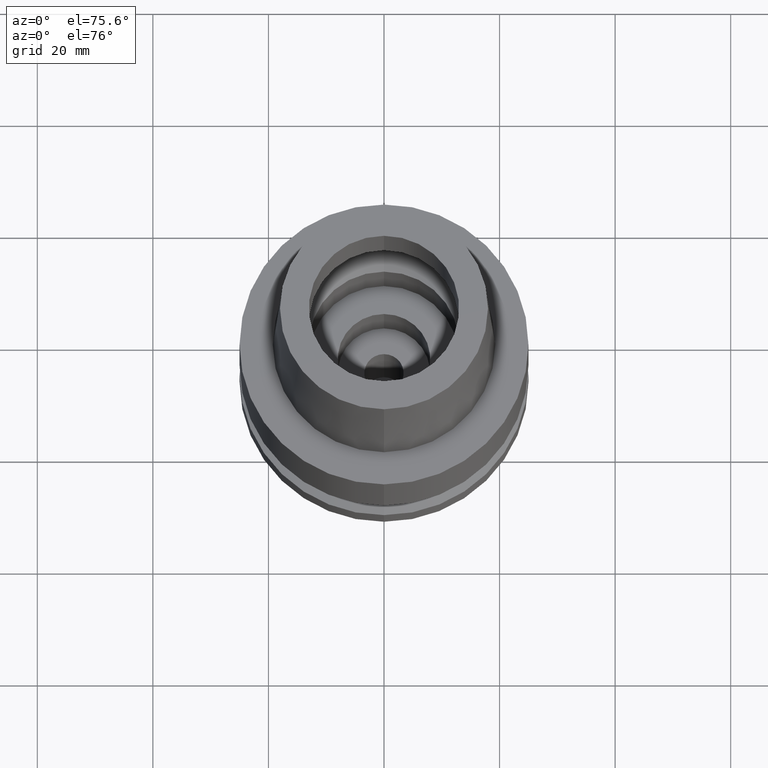
[diagram: clean part render]
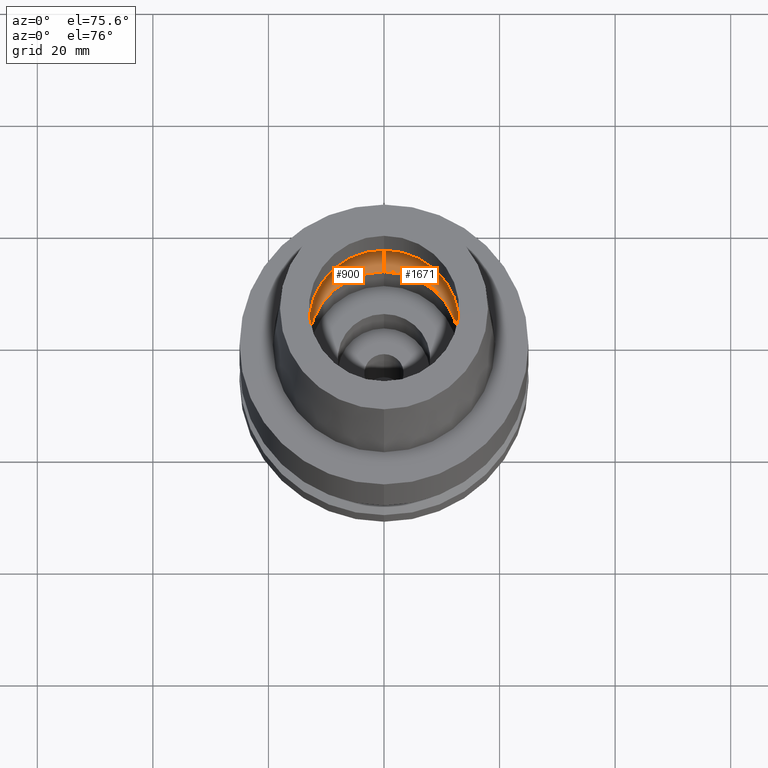
[diagram: same view with one multi-face feature highlighted, each face labeled with its STEP entity id]
A machine part, auxiliary view. The highlighted faces form ONE feature: a constant-radius fillet chain: 2 tangent blend faces with common blend radius 6 mm. The faces share edges in the B-rep.
Their STEP definitions:
[1] entity #900 (Torus):
#32 = DIRECTION ( 'NONE',  ( 0.0000000000000000000, 0.0000000000000000000, 1.000000000000000000 ) ) ;
#87 = EDGE_CURVE ( 'NONE', #241, #480, #1292, .T. ) ;
#241 = VERTEX_POINT ( 'NONE', #1084 ) ;
#284 = EDGE_CURVE ( 'NONE', #241, #2346, #1330, .T. ) ;
#323 = CARTESIAN_POINT ( 'NONE',  ( 0.0000000000000000000, 0.0000000000000000000, 5.245999999999999552 ) ) ;
#348 = CIRCLE ( 'NONE', #482, 16.00000000000000000 ) ;
#409 = DIRECTION ( 'NONE',  ( 0.0000000000000000000, 1.000000000000000000, 0.0000000000000000000 ) ) ;
#480 = VERTEX_POINT ( 'NONE', #2573 ) ;
#482 = AXIS2_PLACEMENT_3D ( 'NONE', #874, #1129, #692 ) ;
#571 = AXIS2_PLACEMENT_3D ( 'NONE', #323, #1973, #957 ) ;
#609 = EDGE_LOOP ( 'NONE', ( #1270, #1019, #814, #1733 ) ) ;
#641 = DIRECTION ( 'NONE',  ( -1.000000000000000000, 0.0000000000000000000, 0.0000000000000000000 ) ) ;
#692 = DIRECTION ( 'NONE',  ( 0.0000000000000000000, -1.000000000000000000, 0.0000000000000000000 ) ) ;
#814 = ORIENTED_EDGE ( 'NONE', *, *, #284, .F. ) ;
#856 = AXIS2_PLACEMENT_3D ( 'NONE', #1043, #32, #409 ) ;
#874 = CARTESIAN_POINT ( 'NONE',  ( 0.0000000000000000000, 0.0000000000000000000, 5.245999999999999552 ) ) ;
#900 = ADVANCED_FACE ( 'NONE', ( #1340 ), #1394, .F. ) ;
#957 = DIRECTION ( 'NONE',  ( 0.0000000000000000000, -1.000000000000000000, 0.0000000000000000000 ) ) ;
#975 = CIRCLE ( 'NONE', #2350, 6.000000000000000000 ) ;
#1019 = ORIENTED_EDGE ( 'NONE', *, *, #2380, .F. ) ;
#1043 = CARTESIAN_POINT ( 'NONE',  ( 0.0000000000000000000, 0.0000000000000000000, 0.04984757729336999899 ) ) ;
#1053 = DIRECTION ( 'NONE',  ( 1.000000000000000000, 0.0000000000000000000, 0.0000000000000000000 ) ) ;
#1059 = DIRECTION ( 'NONE',  ( 0.0000000000000000000, -0.5000000000000169864, -0.8660254037844289376 ) ) ;
#1084 = CARTESIAN_POINT ( 'NONE',  ( 0.0000000000000000000, 13.00000000000000000, 0.04984757729336999899 ) ) ;
#1129 = DIRECTION ( 'NONE',  ( 0.0000000000000000000, 0.0000000000000000000, -1.000000000000000000 ) ) ;
#1233 = DIRECTION ( 'NONE',  ( 0.0000000000000000000, 0.5000000000000169864, -0.8660254037844289376 ) ) ;
#1240 = EDGE_CURVE ( 'NONE', #2604, #480, #348, .T. ) ;
#1270 = ORIENTED_EDGE ( 'NONE', *, *, #1240, .F. ) ;
#1292 = CIRCLE ( 'NONE', #1767, 6.000000000000000000 ) ;
#1330 = CIRCLE ( 'NONE', #856, 13.00000000000000000 ) ;
#1340 = FACE_OUTER_BOUND ( 'NONE', #609, .T. ) ;
#1394 = TOROIDAL_SURFACE ( 'NONE', #571, 10.00000000000000000, 6.000000000000000000 ) ;
#1528 = CARTESIAN_POINT ( 'NONE',  ( 0.0000000000000000000, -16.00000000000000000, 5.245999999999999552 ) ) ;
#1733 = ORIENTED_EDGE ( 'NONE', *, *, #87, .T. ) ;
#1767 = AXIS2_PLACEMENT_3D ( 'NONE', #2223, #1053, #1233 ) ;
#1916 = CARTESIAN_POINT ( 'NONE',  ( 0.0000000000000000000, -13.00000000000000000, 0.04984757729336999899 ) ) ;
#1973 = DIRECTION ( 'NONE',  ( 0.0000000000000000000, 0.0000000000000000000, -1.000000000000000000 ) ) ;
#2223 = CARTESIAN_POINT ( 'NONE',  ( 0.0000000000000000000, 10.00000000000000000, 5.245999999999999552 ) ) ;
#2320 = CARTESIAN_POINT ( 'NONE',  ( 0.0000000000000000000, -10.00000000000000000, 5.245999999999999552 ) ) ;
#2346 = VERTEX_POINT ( 'NONE', #1916 ) ;
#2350 = AXIS2_PLACEMENT_3D ( 'NONE', #2320, #641, #1059 ) ;
#2380 = EDGE_CURVE ( 'NONE', #2346, #2604, #975, .T. ) ;
#2573 = CARTESIAN_POINT ( 'NONE',  ( 0.0000000000000000000, 16.00000000000000000, 5.245999999999999552 ) ) ;
#2604 = VERTEX_POINT ( 'NONE', #1528 ) ;
[2] entity #1671 (Torus):
#87 = EDGE_CURVE ( 'NONE', #241, #480, #1292, .T. ) ;
#215 = EDGE_LOOP ( 'NONE', ( #2120, #304, #2252, #1342 ) ) ;
#241 = VERTEX_POINT ( 'NONE', #1084 ) ;
#304 = ORIENTED_EDGE ( 'NONE', *, *, #2380, .T. ) ;
#442 = DIRECTION ( 'NONE',  ( 0.0000000000000000000, 0.0000000000000000000, 1.000000000000000000 ) ) ;
#480 = VERTEX_POINT ( 'NONE', #2573 ) ;
#641 = DIRECTION ( 'NONE',  ( -1.000000000000000000, 0.0000000000000000000, 0.0000000000000000000 ) ) ;
#975 = CIRCLE ( 'NONE', #2350, 6.000000000000000000 ) ;
#994 = CARTESIAN_POINT ( 'NONE',  ( 0.0000000000000000000, 0.0000000000000000000, 5.245999999999999552 ) ) ;
#1053 = DIRECTION ( 'NONE',  ( 1.000000000000000000, 0.0000000000000000000, 0.0000000000000000000 ) ) ;
#1059 = DIRECTION ( 'NONE',  ( 0.0000000000000000000, -0.5000000000000169864, -0.8660254037844289376 ) ) ;
#1084 = CARTESIAN_POINT ( 'NONE',  ( 0.0000000000000000000, 13.00000000000000000, 0.04984757729336999899 ) ) ;
#1196 = CIRCLE ( 'NONE', #1321, 16.00000000000000000 ) ;
#1233 = DIRECTION ( 'NONE',  ( 0.0000000000000000000, 0.5000000000000169864, -0.8660254037844289376 ) ) ;
#1292 = CIRCLE ( 'NONE', #1767, 6.000000000000000000 ) ;
#1317 = EDGE_CURVE ( 'NONE', #2346, #241, #2696, .T. ) ;
#1321 = AXIS2_PLACEMENT_3D ( 'NONE', #1574, #1354, #2005 ) ;
#1342 = ORIENTED_EDGE ( 'NONE', *, *, #87, .F. ) ;
#1354 = DIRECTION ( 'NONE',  ( 0.0000000000000000000, 0.0000000000000000000, -1.000000000000000000 ) ) ;
#1448 = DIRECTION ( 'NONE',  ( 0.0000000000000000000, -1.000000000000000000, 0.0000000000000000000 ) ) ;
#1488 = TOROIDAL_SURFACE ( 'NONE', #2516, 10.00000000000000000, 6.000000000000000000 ) ;
#1528 = CARTESIAN_POINT ( 'NONE',  ( 0.0000000000000000000, -16.00000000000000000, 5.245999999999999552 ) ) ;
#1574 = CARTESIAN_POINT ( 'NONE',  ( 0.0000000000000000000, 0.0000000000000000000, 5.245999999999999552 ) ) ;
#1671 = ADVANCED_FACE ( 'NONE', ( #1861 ), #1488, .F. ) ;
#1767 = AXIS2_PLACEMENT_3D ( 'NONE', #2223, #1053, #1233 ) ;
#1861 = FACE_OUTER_BOUND ( 'NONE', #215, .T. ) ;
#1916 = CARTESIAN_POINT ( 'NONE',  ( 0.0000000000000000000, -13.00000000000000000, 0.04984757729336999899 ) ) ;
#2005 = DIRECTION ( 'NONE',  ( 0.0000000000000000000, 1.000000000000000000, 0.0000000000000000000 ) ) ;
#2045 = EDGE_CURVE ( 'NONE', #480, #2604, #1196, .T. ) ;
#2093 = AXIS2_PLACEMENT_3D ( 'NONE', #2296, #442, #2106 ) ;
#2106 = DIRECTION ( 'NONE',  ( 0.0000000000000000000, -1.000000000000000000, 0.0000000000000000000 ) ) ;
#2120 = ORIENTED_EDGE ( 'NONE', *, *, #1317, .F. ) ;
#2223 = CARTESIAN_POINT ( 'NONE',  ( 0.0000000000000000000, 10.00000000000000000, 5.245999999999999552 ) ) ;
#2250 = DIRECTION ( 'NONE',  ( 0.0000000000000000000, 0.0000000000000000000, -1.000000000000000000 ) ) ;
#2252 = ORIENTED_EDGE ( 'NONE', *, *, #2045, .F. ) ;
#2296 = CARTESIAN_POINT ( 'NONE',  ( 0.0000000000000000000, 0.0000000000000000000, 0.04984757729336999899 ) ) ;
#2320 = CARTESIAN_POINT ( 'NONE',  ( 0.0000000000000000000, -10.00000000000000000, 5.245999999999999552 ) ) ;
#2346 = VERTEX_POINT ( 'NONE', #1916 ) ;
#2350 = AXIS2_PLACEMENT_3D ( 'NONE', #2320, #641, #1059 ) ;
#2380 = EDGE_CURVE ( 'NONE', #2346, #2604, #975, .T. ) ;
#2516 = AXIS2_PLACEMENT_3D ( 'NONE', #994, #2250, #1448 ) ;
#2573 = CARTESIAN_POINT ( 'NONE',  ( 0.0000000000000000000, 16.00000000000000000, 5.245999999999999552 ) ) ;
#2604 = VERTEX_POINT ( 'NONE', #1528 ) ;
#2696 = CIRCLE ( 'NONE', #2093, 13.00000000000000000 ) ;